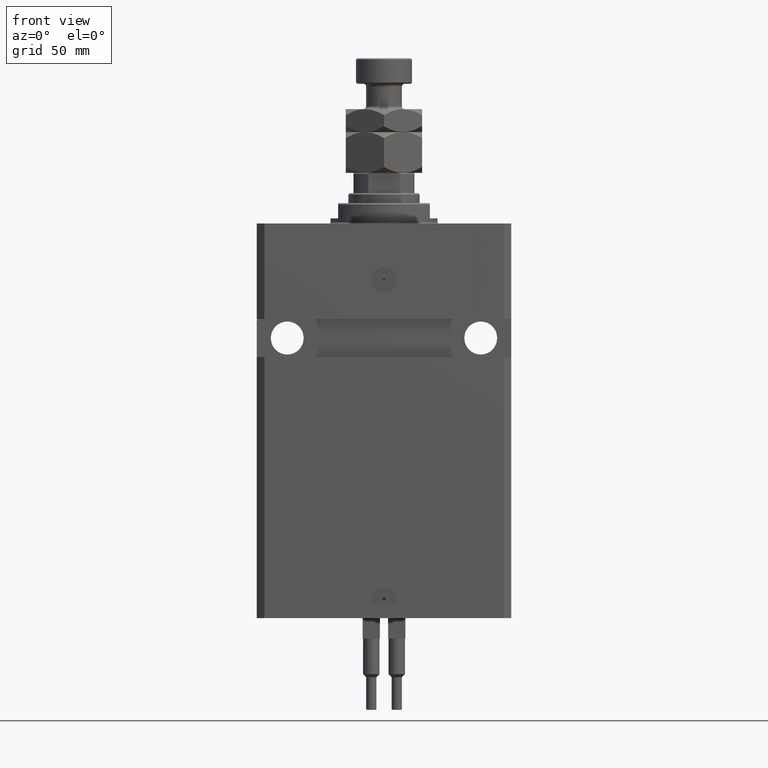
[diagram: clean part render]
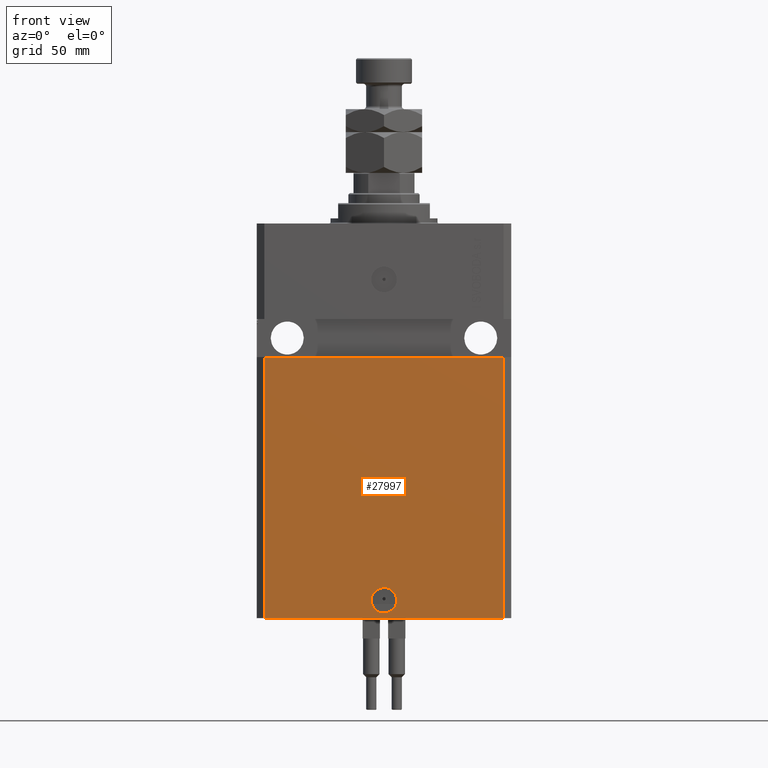
[diagram: same view with one face highlighted and labeled with its STEP entity id]
A machine part, front view. The second image highlights one B-rep face of the part: STEP entity #27997.
In plain terms, the highlighted planar face has unit normal (-0, -1, 0).
Its self-contained STEP definition (entity closure, byte-faithful):
#368 = CARTESIAN_POINT ( 'NONE',  ( -5.536351519074916863E-15, -37.50000000000000000, -148.0000000000000000 ) ) ;
#998 = AXIS2_PLACEMENT_3D ( 'NONE', #368, #9518, #41044 ) ;
#4096 = VERTEX_POINT ( 'NONE', #10838 ) ;
#4439 = CARTESIAN_POINT ( 'NONE',  ( -47.00000000000000000, -37.49999999999999289, -155.0000000000000000 ) ) ;
#4635 = EDGE_CURVE ( 'NONE', #35672, #27757, #39196, .T. ) ;
#5081 = CIRCLE ( 'NONE', #998, 5.000000000000006217 ) ;
#5746 = VECTOR ( 'NONE', #22490, 1000.000000000000000 ) ;
#5786 = PLANE ( 'NONE',  #37677 ) ;
#7618 = CARTESIAN_POINT ( 'NONE',  ( -5.536351519074916863E-15, -37.50000000000000000, -148.0000000000000000 ) ) ;
#7641 = EDGE_LOOP ( 'NONE', ( #31835, #30763 ) ) ;
#9518 = DIRECTION ( 'NONE',  ( 1.176083712526788232E-16, -1.000000000000000000, 0.000000000000000000 ) ) ;
#10838 = CARTESIAN_POINT ( 'NONE',  ( 47.00000000000000000, -37.49999999999999289, -52.49999999999998579 ) ) ;
#11698 = DIRECTION ( 'NONE',  ( 0.000000000000000000, 0.000000000000000000, 1.000000000000000000 ) ) ;
#13980 = FACE_BOUND ( 'NONE', #7641, .T. ) ;
#14294 = EDGE_CURVE ( 'NONE', #27757, #35672, #5081, .T. ) ;
#15643 = VERTEX_POINT ( 'NONE', #25656 ) ;
#19044 = VECTOR ( 'NONE', #27501, 1000.000000000000000 ) ;
#19990 = ORIENTED_EDGE ( 'NONE', *, *, #50733, .T. ) ;
#20229 = VERTEX_POINT ( 'NONE', #27079 ) ;
#20405 = CARTESIAN_POINT ( 'NONE',  ( 47.00000000000000000, -37.50000000000000711, -155.0000000000000000 ) ) ;
#21111 = EDGE_CURVE ( 'NONE', #20229, #4096, #23733, .T. ) ;
#22490 = DIRECTION ( 'NONE',  ( 0.000000000000000000, 0.000000000000000000, 1.000000000000000000 ) ) ;
#23733 = LINE ( 'NONE', #20405, #45304 ) ;
#25070 = LINE ( 'NONE', #43808, #36638 ) ;
#25656 = CARTESIAN_POINT ( 'NONE',  ( -46.99999999999998579, -37.50000000000000711, -52.50000000000000000 ) ) ;
#26856 = DIRECTION ( 'NONE',  ( 1.176083712526788232E-16, -1.000000000000000000, 0.000000000000000000 ) ) ;
#27022 = EDGE_CURVE ( 'NONE', #37474, #15643, #46335, .T. ) ;
#27079 = CARTESIAN_POINT ( 'NONE',  ( 47.00000000000000000, -37.50000000000000711, -155.0000000000000000 ) ) ;
#27501 = DIRECTION ( 'NONE',  ( 1.000000000000000000, 1.387778780781445182E-16, 1.387778780781445182E-16 ) ) ;
#27757 = VERTEX_POINT ( 'NONE', #42626 ) ;
#27997 = ADVANCED_FACE ( 'NONE', ( #13980, #45017 ), #5786, .T. ) ;
#28874 = DIRECTION ( 'NONE',  ( -1.476360405086644309E-16, -1.000000000000000000, 0.000000000000000000 ) ) ;
#30763 = ORIENTED_EDGE ( 'NONE', *, *, #4635, .F. ) ;
#31606 = ORIENTED_EDGE ( 'NONE', *, *, #27022, .F. ) ;
#31835 = ORIENTED_EDGE ( 'NONE', *, *, #14294, .F. ) ;
#31842 = ORIENTED_EDGE ( 'NONE', *, *, #21111, .T. ) ;
#32162 = EDGE_CURVE ( 'NONE', #15643, #4096, #38534, .T. ) ;
#35672 = VERTEX_POINT ( 'NONE', #47938 ) ;
#36638 = VECTOR ( 'NONE', #40202, 1000.000000000000000 ) ;
#36825 = CARTESIAN_POINT ( 'NONE',  ( -47.00000000000000000, -37.49999999999999289, -155.0000000000000000 ) ) ;
#37474 = VERTEX_POINT ( 'NONE', #4439 ) ;
#37677 = AXIS2_PLACEMENT_3D ( 'NONE', #36825, #28874, #41417 ) ;
#38534 = LINE ( 'NONE', #39032, #19044 ) ;
#39032 = CARTESIAN_POINT ( 'NONE',  ( -50.00000000000002842, -37.50000000000000711, -52.50000000000000000 ) ) ;
#39196 = CIRCLE ( 'NONE', #40044, 5.000000000000006217 ) ;
#40044 = AXIS2_PLACEMENT_3D ( 'NONE', #7618, #26856, #42499 ) ;
#40202 = DIRECTION ( 'NONE',  ( 1.000000000000000000, -1.476360405086644309E-16, 0.000000000000000000 ) ) ;
#41044 = DIRECTION ( 'NONE',  ( 1.000000000000000000, 0.000000000000000000, 0.000000000000000000 ) ) ;
#41417 = DIRECTION ( 'NONE',  ( 1.000000000000000000, -1.476360405086644309E-16, 0.000000000000000000 ) ) ;
#42499 = DIRECTION ( 'NONE',  ( 1.000000000000000000, 0.000000000000000000, 0.000000000000000000 ) ) ;
#42626 = CARTESIAN_POINT ( 'NONE',  ( 5.000000000000000888, -37.50000000000000000, -148.0000000000000000 ) ) ;
#43808 = CARTESIAN_POINT ( 'NONE',  ( -47.00000000000000000, -37.49999999999999289, -155.0000000000000000 ) ) ;
#44933 = ORIENTED_EDGE ( 'NONE', *, *, #32162, .F. ) ;
#45017 = FACE_OUTER_BOUND ( 'NONE', #48184, .T. ) ;
#45304 = VECTOR ( 'NONE', #11698, 1000.000000000000000 ) ;
#46335 = LINE ( 'NONE', #49917, #5746 ) ;
#47938 = CARTESIAN_POINT ( 'NONE',  ( -5.000000000000011546, -37.50000000000000000, -148.0000000000000000 ) ) ;
#48184 = EDGE_LOOP ( 'NONE', ( #44933, #31606, #19990, #31842 ) ) ;
#49917 = CARTESIAN_POINT ( 'NONE',  ( -47.00000000000000000, -37.49999999999999289, -155.0000000000000000 ) ) ;
#50733 = EDGE_CURVE ( 'NONE', #37474, #20229, #25070, .T. ) ;